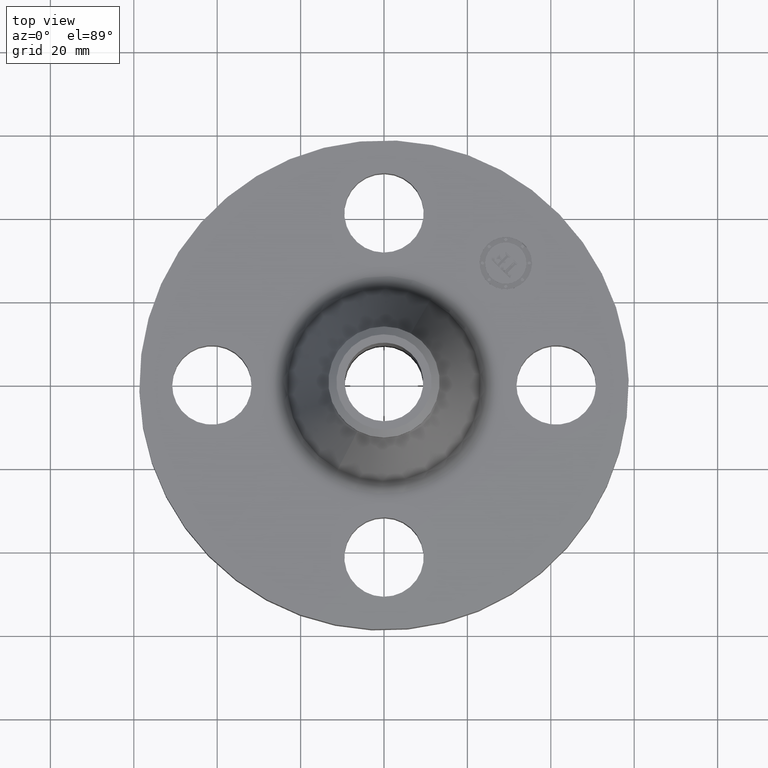
[diagram: clean part render]
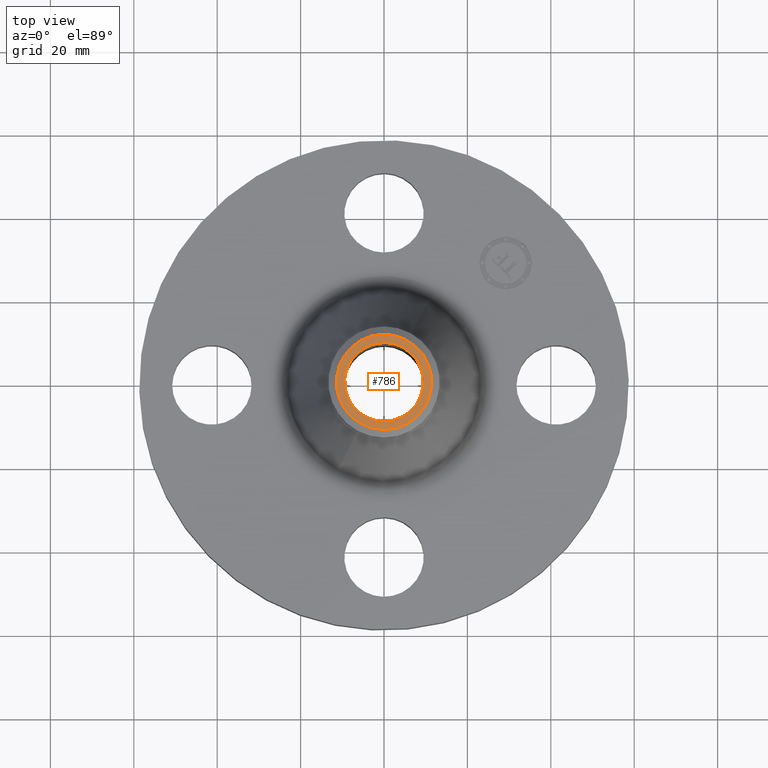
[diagram: same view with one face highlighted and labeled with its STEP entity id]
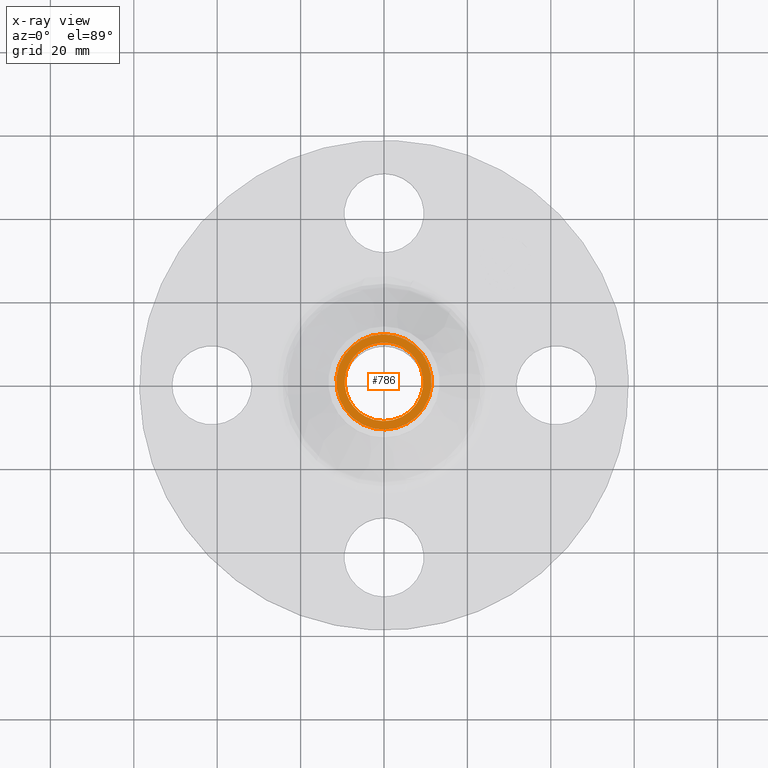
[diagram: x-ray of the same camera — body ghosted, the highlighted face saturated]
A machine part, top view. The second image highlights one B-rep face of the part: STEP entity #786.
The next image is the same camera in x-ray: the body ghosted, the highlighted face saturated — about 0% of this face is hidden behind the body in this view.
In plain terms, the highlighted planar face has unit normal (0, 0, -1).
Its self-contained STEP definition (entity closure, byte-faithful):
#411=AXIS2_PLACEMENT_3D('Circle Axis2P3D',#409,#410,$) ;
#762=AXIS2_PLACEMENT_3D('Plane Axis2P3D',#759,#760,#761) ;
#766=AXIS2_PLACEMENT_3D('Circle Axis2P3D',#764,#765,$) ;
#775=AXIS2_PLACEMENT_3D('Circle Axis2P3D',#773,#774,$) ;
#409=CARTESIAN_POINT('Axis2P3D Location',(0.,0.,2.25000000004)) ;
#413=CARTESIAN_POINT('Vertex',(0.17786687482,0.325583130469,2.25000000001)) ;
#415=CARTESIAN_POINT('Vertex',(-0.17786687482,-0.325583130462,2.25000000001)) ;
#448=CARTESIAN_POINT('Control Point',(-0.177866874823,-0.325583130462,2.25000000001)) ;
#449=CARTESIAN_POINT('Control Point',(-0.229009353362,-0.297643867099,2.25000000001)) ;
#450=CARTESIAN_POINT('Control Point',(-0.274665970369,-0.259662801557,2.25000000001)) ;
#451=CARTESIAN_POINT('Control Point',(-0.312198894825,-0.213068101463,2.25000000002)) ;
#452=CARTESIAN_POINT('Control Point',(-0.366972629032,-0.10767270258,2.25000000002)) ;
#453=CARTESIAN_POINT('Control Point',(-0.377827498012,0.0106088424062,2.25000000002)) ;
#454=CARTESIAN_POINT('Control Point',(-0.371419855009,0.0700960562104,2.25000000002)) ;
#455=CARTESIAN_POINT('Control Point',(-0.335624932641,0.183352736356,2.25000000003)) ;
#456=CARTESIAN_POINT('Control Point',(-0.259662801557,0.274665970369,2.25000000003)) ;
#457=CARTESIAN_POINT('Control Point',(-0.213068101463,0.312198894825,2.25000000003)) ;
#458=CARTESIAN_POINT('Control Point',(-0.10767270258,0.366972629032,2.25000000004)) ;
#459=CARTESIAN_POINT('Control Point',(0.0106088424061,0.377827498012,2.25000000004)) ;
#460=CARTESIAN_POINT('Control Point',(0.0700960562103,0.371419855009,2.25000000004)) ;
#461=CARTESIAN_POINT('Control Point',(0.126724396283,0.353522393825,2.25000000004)) ;
#462=CARTESIAN_POINT('Control Point',(0.177866874823,0.325583130462,2.25000000004)) ;
#759=CARTESIAN_POINT('Axis2P3D Location',(0.,0.525000000002,2.25000000001)) ;
#764=CARTESIAN_POINT('Axis2P3D Location',(-1.28117289306E-011,-3.53229256868E-012,2.25000000001)) ;
#768=CARTESIAN_POINT('Vertex',(0.215616917233,-0.394684119588,2.25000000001)) ;
#770=CARTESIAN_POINT('Vertex',(-0.215616917233,0.394684119588,2.25000000001)) ;
#773=CARTESIAN_POINT('Axis2P3D Location',(1.28117289306E-011,1.0465679067E-011,2.25000000001)) ;
#410=DIRECTION('Axis2P3D Direction',(0.,0.,-0.0393700787402)) ;
#760=DIRECTION('Axis2P3D Direction',(0.,0.,-0.0393700787402)) ;
#761=DIRECTION('Axis2P3D XDirection',(0.0393700787402,0.,0.)) ;
#765=DIRECTION('Axis2P3D Direction',(0.,0.,-0.0393700787402)) ;
#774=DIRECTION('Axis2P3D Direction',(0.,0.,-0.0393700787402)) ;
#779=ORIENTED_EDGE('',*,*,#772,.T.) ;
#780=ORIENTED_EDGE('',*,*,#777,.T.) ;
#783=ORIENTED_EDGE('',*,*,#463,.T.) ;
#784=ORIENTED_EDGE('',*,*,#417,.T.) ;
#785=FACE_BOUND('',#782,.T.) ;
#786=ADVANCED_FACE('PartBody',(#781,#785),#763,.F.) ;
#447=B_SPLINE_CURVE_WITH_KNOTS('',5,(#448,#449,#450,#451,#452,#453,#454,#455,#456,#457,#458,#459,#460,#461,#462),.UNSPECIFIED.,.F.,.U.,(6,3,3,3,6),(-14.802242106,-7.40112105298,-8.881784197E-016,7.40112105298,14.802242106),.UNSPECIFIED.) ;
#412=CIRCLE('generated circle',#411,0.371000000001) ;
#767=CIRCLE('generated circle',#766,0.449740157491) ;
#776=CIRCLE('generated circle',#775,0.449740157491) ;
#417=EDGE_CURVE('',#414,#416,#412,.T.) ;
#463=EDGE_CURVE('',#416,#414,#447,.T.) ;
#772=EDGE_CURVE('',#769,#771,#767,.F.) ;
#777=EDGE_CURVE('',#771,#769,#776,.F.) ;
#778=EDGE_LOOP('',(#779,#780)) ;
#782=EDGE_LOOP('',(#783,#784)) ;
#781=FACE_OUTER_BOUND('',#778,.T.) ;
#763=PLANE('',#762) ;
#414=VERTEX_POINT('',#413) ;
#416=VERTEX_POINT('',#415) ;
#769=VERTEX_POINT('',#768) ;
#771=VERTEX_POINT('',#770) ;